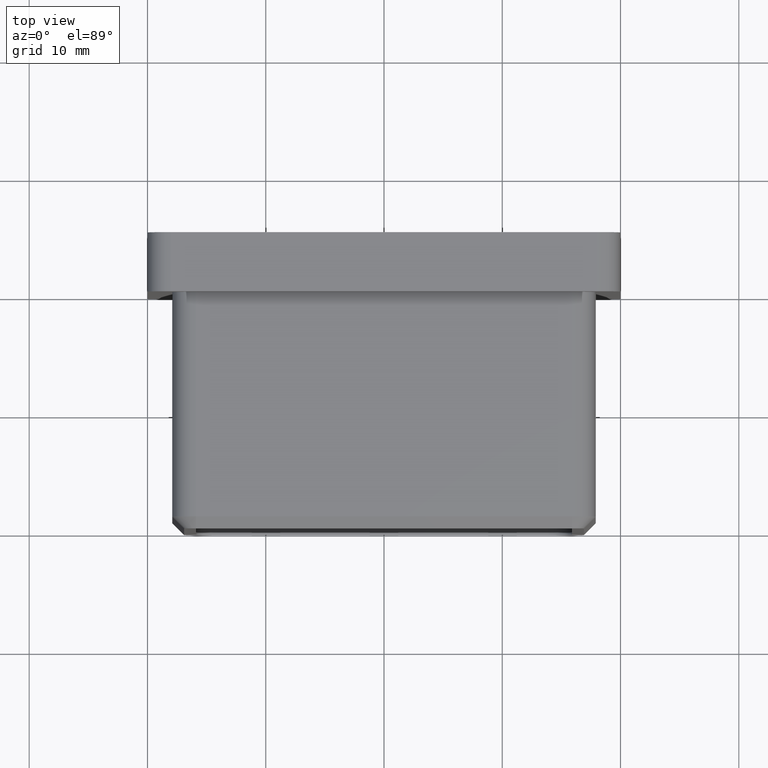
[diagram: clean part render]
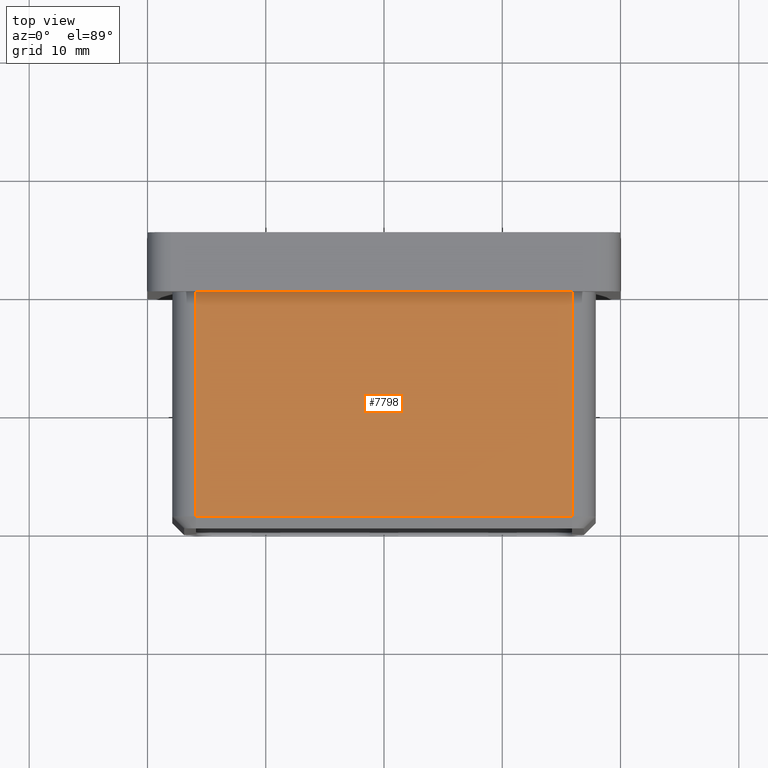
[diagram: same view with one face highlighted and labeled with its STEP entity id]
A machine part, top view. The second image highlights one B-rep face of the part: STEP entity #7798.
In plain terms, the highlighted planar face has unit normal (0, 0, -1).
Its self-contained STEP definition (entity closure, byte-faithful):
#68 = DIRECTION ( 'NONE',  ( -0.0000000000000000000, -1.000000000000000000, -0.0000000000000000000 ) ) ;
#325 = CARTESIAN_POINT ( 'NONE',  ( -15.90000000000000400, -20.00000000000000000, 17.90000000000000200 ) ) ;
#475 = EDGE_CURVE ( 'NONE', #8612, #15127, #10348, .T. ) ;
#820 = DIRECTION ( 'NONE',  ( 0.0000000000000000000, 0.0000000000000000000, -1.000000000000000000 ) ) ;
#830 = EDGE_CURVE ( 'NONE', #16052, #13836, #8322, .T. ) ;
#1048 = VECTOR ( 'NONE', #6718, 1000.000000000000000 ) ;
#1091 = CARTESIAN_POINT ( 'NONE',  ( 15.90000000000000700, -19.00000000000000000, 17.90000000000000200 ) ) ;
#2492 = CARTESIAN_POINT ( 'NONE',  ( -17.90000000000000200, 0.0000000000000000000, 17.90000000000000200 ) ) ;
#3459 = DIRECTION ( 'NONE',  ( 0.0000000000000000000, 1.000000000000000000, 0.0000000000000000000 ) ) ;
#3486 = EDGE_CURVE ( 'NONE', #15127, #16052, #12370, .T. ) ;
#5140 = ORIENTED_EDGE ( 'NONE', *, *, #830, .T. ) ;
#6718 = DIRECTION ( 'NONE',  ( 1.000000000000000000, 0.0000000000000000000, 0.0000000000000000000 ) ) ;
#6825 = EDGE_LOOP ( 'NONE', ( #9133, #14429, #5140, #10153 ) ) ;
#7767 = DIRECTION ( 'NONE',  ( -1.000000000000000000, 0.0000000000000000000, -0.0000000000000000000 ) ) ;
#7798 = ADVANCED_FACE ( 'NONE', ( #8288 ), #12170, .F. ) ;
#8288 = FACE_OUTER_BOUND ( 'NONE', #6825, .T. ) ;
#8322 = LINE ( 'NONE', #11986, #11900 ) ;
#8612 = VERTEX_POINT ( 'NONE', #9394 ) ;
#9133 = ORIENTED_EDGE ( 'NONE', *, *, #475, .T. ) ;
#9394 = CARTESIAN_POINT ( 'NONE',  ( -15.90000000000000400, 0.0000000000000000000, 17.90000000000000200 ) ) ;
#9685 = CARTESIAN_POINT ( 'NONE',  ( -15.90000000000000400, -19.00000000000000000, 17.90000000000000200 ) ) ;
#10153 = ORIENTED_EDGE ( 'NONE', *, *, #14994, .T. ) ;
#10348 = LINE ( 'NONE', #325, #13701 ) ;
#11900 = VECTOR ( 'NONE', #3459, 1000.000000000000000 ) ;
#11986 = CARTESIAN_POINT ( 'NONE',  ( 15.90000000000000700, -20.00000000000000000, 17.90000000000000200 ) ) ;
#12105 = CARTESIAN_POINT ( 'NONE',  ( -17.90000000000000200, -20.00000000000000000, 17.90000000000000200 ) ) ;
#12170 = PLANE ( 'NONE',  #17246 ) ;
#12370 = LINE ( 'NONE', #1091, #1048 ) ;
#13701 = VECTOR ( 'NONE', #68, 1000.000000000000000 ) ;
#13836 = VERTEX_POINT ( 'NONE', #18418 ) ;
#14429 = ORIENTED_EDGE ( 'NONE', *, *, #3486, .T. ) ;
#14994 = EDGE_CURVE ( 'NONE', #13836, #8612, #16584, .T. ) ;
#15127 = VERTEX_POINT ( 'NONE', #9685 ) ;
#16052 = VERTEX_POINT ( 'NONE', #17800 ) ;
#16584 = LINE ( 'NONE', #2492, #17015 ) ;
#17015 = VECTOR ( 'NONE', #18271, 1000.000000000000000 ) ;
#17246 = AXIS2_PLACEMENT_3D ( 'NONE', #12105, #820, #7767 ) ;
#17800 = CARTESIAN_POINT ( 'NONE',  ( 15.90000000000000700, -19.00000000000000000, 17.90000000000000200 ) ) ;
#18271 = DIRECTION ( 'NONE',  ( -1.000000000000000000, -0.0000000000000000000, -0.0000000000000000000 ) ) ;
#18418 = CARTESIAN_POINT ( 'NONE',  ( 15.90000000000000700, 0.0000000000000000000, 17.90000000000000200 ) ) ;